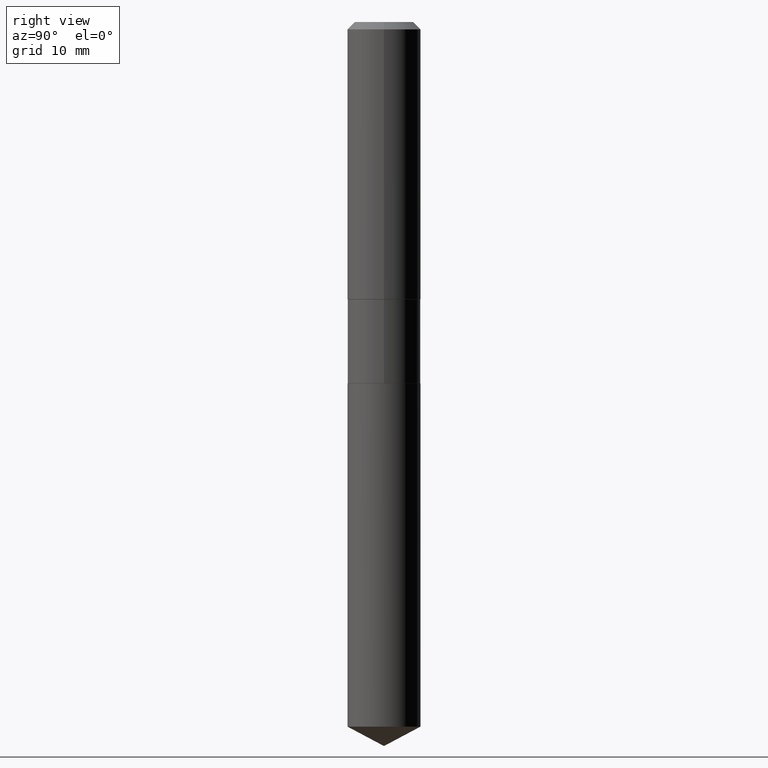
[diagram: clean part render]
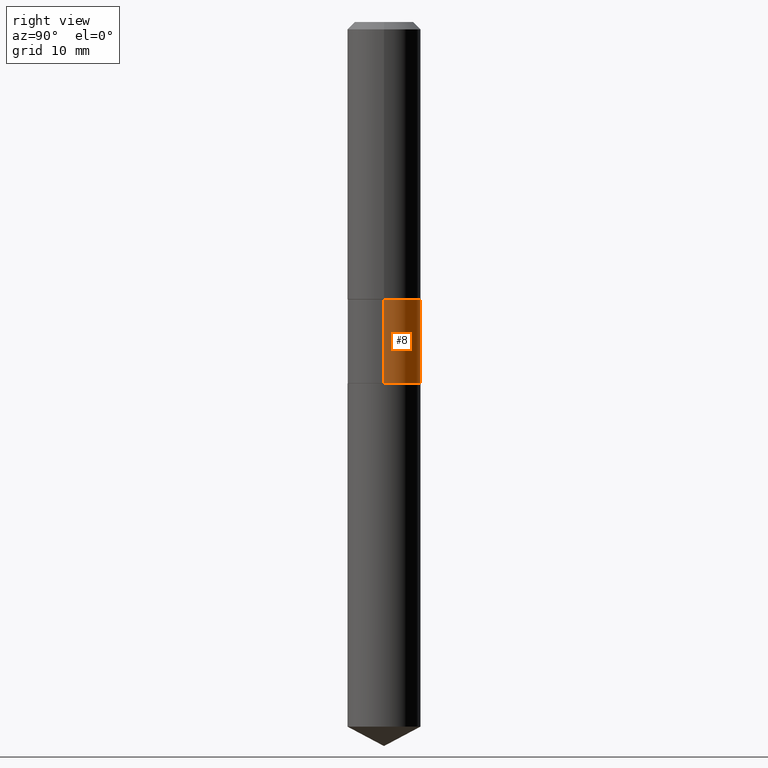
[diagram: same view with one face highlighted and labeled with its STEP entity id]
A machine part, right view. The second image highlights one B-rep face of the part: STEP entity #8.
In plain terms, the highlighted cylindrical surface (edge-blend (fillet) strip) has radius 5.9538 mm, axis along (-0, 0, 1).
Its self-contained STEP definition (entity closure, byte-faithful):
#7 = CARTESIAN_POINT ( 'NONE',  ( 0.2343999999999999695, -1.636806451649660713E-15, 1.142975836246567155E-29 ) ) ;
#8 = ADVANCED_FACE ( 'NONE', ( #80 ), #460, .T. ) ;
#19 = CARTESIAN_POINT ( 'NONE',  ( -0.2343999999999999417, -5.492024572006774200E-15, -1.780699999999999950 ) ) ;
#21 = VERTEX_POINT ( 'NONE', #251 ) ;
#32 = VERTEX_POINT ( 'NONE', #141 ) ;
#42 = CIRCLE ( 'NONE', #248, 0.2343999999999999417 ) ;
#56 = EDGE_CURVE ( 'NONE', #286, #32, #203, .T. ) ;
#66 = ORIENTED_EDGE ( 'NONE', *, *, #56, .F. ) ;
#79 = DIRECTION ( 'NONE',  ( -2.445468806185136877E-29, 3.491481338843145188E-15, 1.000000000000000000 ) ) ;
#80 = FACE_OUTER_BOUND ( 'NONE', #143, .T. ) ;
#87 = VECTOR ( 'NONE', #79, 39.37007874015748143 ) ;
#96 = DIRECTION ( 'NONE',  ( -2.445468806185136597E-29, 3.491481338843145583E-15, 1.000000000000000000 ) ) ;
#111 = ORIENTED_EDGE ( 'NONE', *, *, #198, .T. ) ;
#141 = CARTESIAN_POINT ( 'NONE',  ( 0.2343999999999999417, -7.854087271727649845E-15, -1.780699999999999950 ) ) ;
#143 = EDGE_LOOP ( 'NONE', ( #111, #379, #303, #66 ) ) ;
#144 = CARTESIAN_POINT ( 'NONE',  ( 0.2343999999999999972, -9.734599120828569220E-15, -2.319300000000000139 ) ) ;
#198 = EDGE_CURVE ( 'NONE', #286, #21, #321, .T. ) ;
#203 = LINE ( 'NONE', #7, #314 ) ;
#219 = DIRECTION ( 'NONE',  ( -2.445468806185136597E-29, 3.491481338843145583E-15, 1.000000000000000000 ) ) ;
#238 = AXIS2_PLACEMENT_3D ( 'NONE', #354, #96, #482 ) ;
#240 = DIRECTION ( 'NONE',  ( -2.445468806185136877E-29, 3.491481338843145188E-15, 1.000000000000000000 ) ) ;
#248 = AXIS2_PLACEMENT_3D ( 'NONE', #284, #372, #333 ) ;
#251 = CARTESIAN_POINT ( 'NONE',  ( -0.2344000000000000250, -5.492024572006774200E-15, -2.319300000000000139 ) ) ;
#262 = CARTESIAN_POINT ( 'NONE',  ( -0.2343999999999999695, 1.665512172621674619E-15, -1.152998385155749684E-29 ) ) ;
#284 = CARTESIAN_POINT ( 'NONE',  ( 4.354646303173872369E-29, -6.217280820077988934E-15, -1.780699999999999950 ) ) ;
#286 = VERTEX_POINT ( 'NONE', #144 ) ;
#287 = CARTESIAN_POINT ( 'NONE',  ( 5.671775802185187790E-29, -8.097792669178907520E-15, -2.319300000000000139 ) ) ;
#302 = AXIS2_PLACEMENT_3D ( 'NONE', #287, #219, #471 ) ;
#303 = ORIENTED_EDGE ( 'NONE', *, *, #332, .F. ) ;
#314 = VECTOR ( 'NONE', #240, 39.37007874015748143 ) ;
#321 = CIRCLE ( 'NONE', #302, 0.2343999999999999972 ) ;
#324 = VERTEX_POINT ( 'NONE', #19 ) ;
#332 = EDGE_CURVE ( 'NONE', #32, #324, #42, .T. ) ;
#333 = DIRECTION ( 'NONE',  ( 1.000000000000000000, -6.982962677686267499E-15, 0.000000000000000000 ) ) ;
#349 = EDGE_CURVE ( 'NONE', #21, #324, #378, .T. ) ;
#354 = CARTESIAN_POINT ( 'NONE',  ( 0.000000000000000000, 0.000000000000000000, 0.000000000000000000 ) ) ;
#372 = DIRECTION ( 'NONE',  ( -2.445468806185136597E-29, 3.491481338843145583E-15, 1.000000000000000000 ) ) ;
#378 = LINE ( 'NONE', #262, #87 ) ;
#379 = ORIENTED_EDGE ( 'NONE', *, *, #349, .T. ) ;
#460 = CYLINDRICAL_SURFACE ( 'NONE', #238, 0.2343999999999999695 ) ;
#471 = DIRECTION ( 'NONE',  ( 1.000000000000000000, -6.982962677686269866E-15, 0.000000000000000000 ) ) ;
#482 = DIRECTION ( 'NONE',  ( 1.000000000000000000, -6.982962677686266711E-15, 4.876176775795935793E-29 ) ) ;